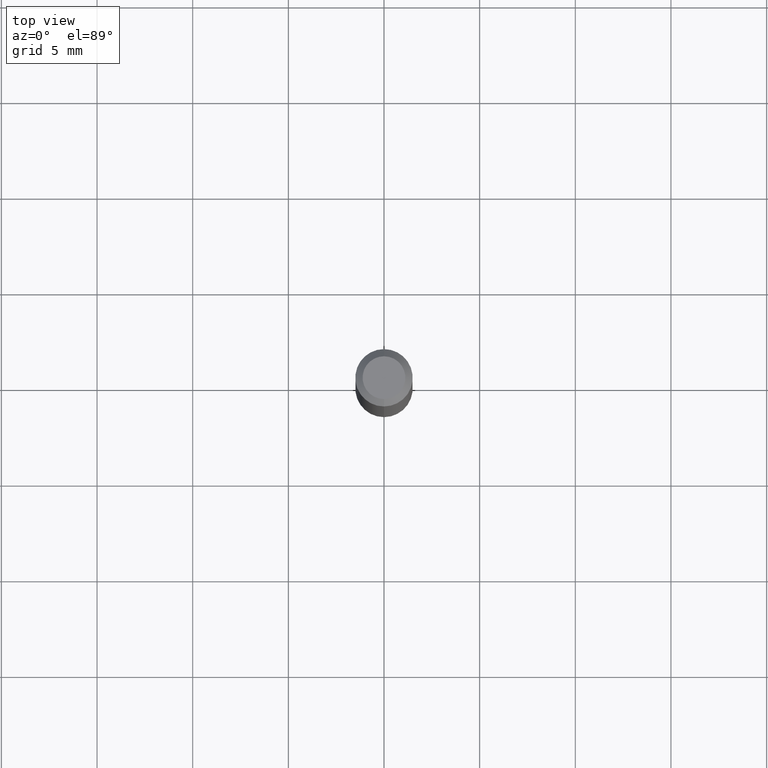
[diagram: clean part render]
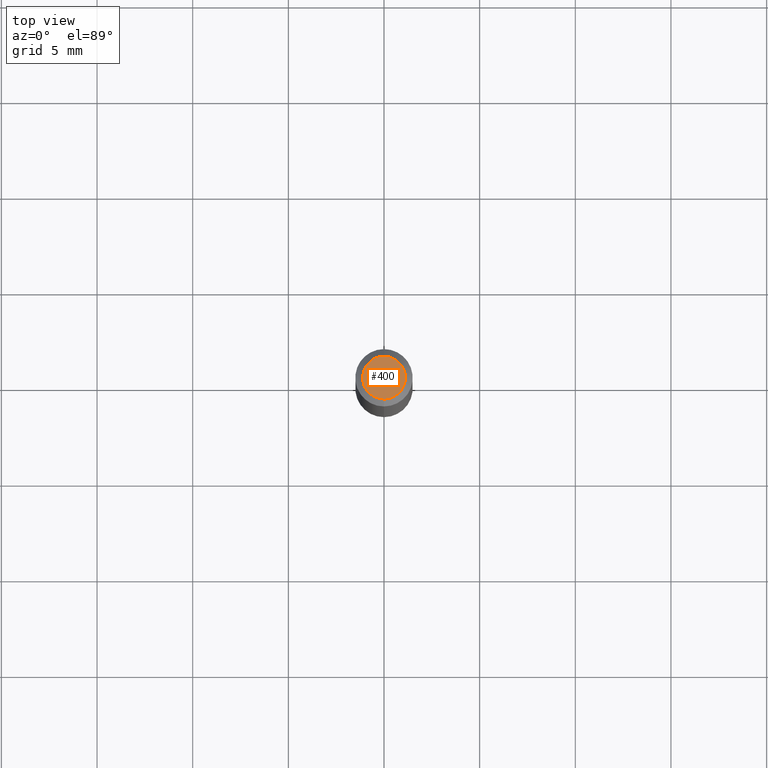
[diagram: same view with one face highlighted and labeled with its STEP entity id]
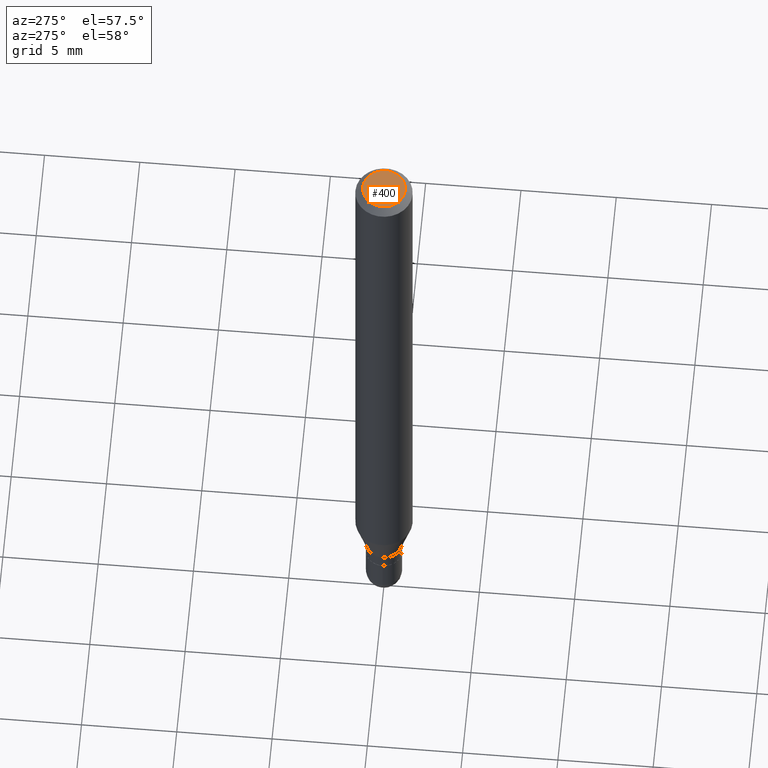
[diagram: same view with one face highlighted and labeled with its STEP entity id]
A machine part, top view. The second image highlights one B-rep face of the part: STEP entity #400.
A second angle (auxiliary view) of the same face is appended — the face is thin or edge-on in the first view.
In plain terms, the highlighted planar face has unit normal (0, -0, -1).
Its self-contained STEP definition (entity closure, byte-faithful):
#10 = DIRECTION ( 'NONE',  ( 6.982962677686265922E-15, 1.000000000000000000, -3.491556839184075306E-15 ) ) ;
#30 = EDGE_CURVE ( 'NONE', #311, #126, #73, .T. ) ;
#52 = DIRECTION ( 'NONE',  ( -2.445416084578850208E-29, 3.491556839184075306E-15, 1.000000000000000000 ) ) ;
#73 = CIRCLE ( 'NONE', #150, 0.04404999999999999888 ) ;
#125 = CARTESIAN_POINT ( 'NONE',  ( 2.241504749547328887E-45, -3.200412922651327625E-31, -9.166148712616163754E-17 ) ) ;
#126 = VERTEX_POINT ( 'NONE', #190 ) ;
#150 = AXIS2_PLACEMENT_3D ( 'NONE', #125, #52, #195 ) ;
#181 = AXIS2_PLACEMENT_3D ( 'NONE', #356, #446, #10 ) ;
#187 = AXIS2_PLACEMENT_3D ( 'NONE', #226, #305, #469 ) ;
#190 = CARTESIAN_POINT ( 'NONE',  ( -3.536586717851222218E-16, -0.04404999999999999888, 6.214159163989687585E-17 ) ) ;
#195 = DIRECTION ( 'NONE',  ( -6.982962677686265133E-15, -1.000000000000000000, 3.491556839184075306E-15 ) ) ;
#196 = ORIENTED_EDGE ( 'NONE', *, *, #326, .T. ) ;
#226 = CARTESIAN_POINT ( 'NONE',  ( 2.241504749547328887E-45, -3.200412922651327625E-31, -9.166148712616163754E-17 ) ) ;
#235 = CARTESIAN_POINT ( 'NONE',  ( 3.599717260347271507E-16, 0.04404999999999999888, -2.454645658922201879E-16 ) ) ;
#237 = FACE_OUTER_BOUND ( 'NONE', #382, .T. ) ;
#305 = DIRECTION ( 'NONE',  ( -2.445416084578850208E-29, 3.491556839184075306E-15, 1.000000000000000000 ) ) ;
#311 = VERTEX_POINT ( 'NONE', #235 ) ;
#326 = EDGE_CURVE ( 'NONE', #126, #311, #492, .T. ) ;
#351 = ORIENTED_EDGE ( 'NONE', *, *, #30, .T. ) ;
#356 = CARTESIAN_POINT ( 'NONE',  ( 3.075995059520799729E-16, 0.04404999999999999888, -1.996338223291393383E-16 ) ) ;
#382 = EDGE_LOOP ( 'NONE', ( #351, #196 ) ) ;
#400 = ADVANCED_FACE ( 'NONE', ( #237 ), #411, .F. ) ;
#411 = PLANE ( 'NONE',  #181 ) ;
#446 = DIRECTION ( 'NONE',  ( 2.445416084578849928E-29, -3.491556839184075306E-15, -1.000000000000000000 ) ) ;
#469 = DIRECTION ( 'NONE',  ( -6.982962677686265133E-15, -1.000000000000000000, 3.491556839184075306E-15 ) ) ;
#492 = CIRCLE ( 'NONE', #187, 0.04404999999999999888 ) ;